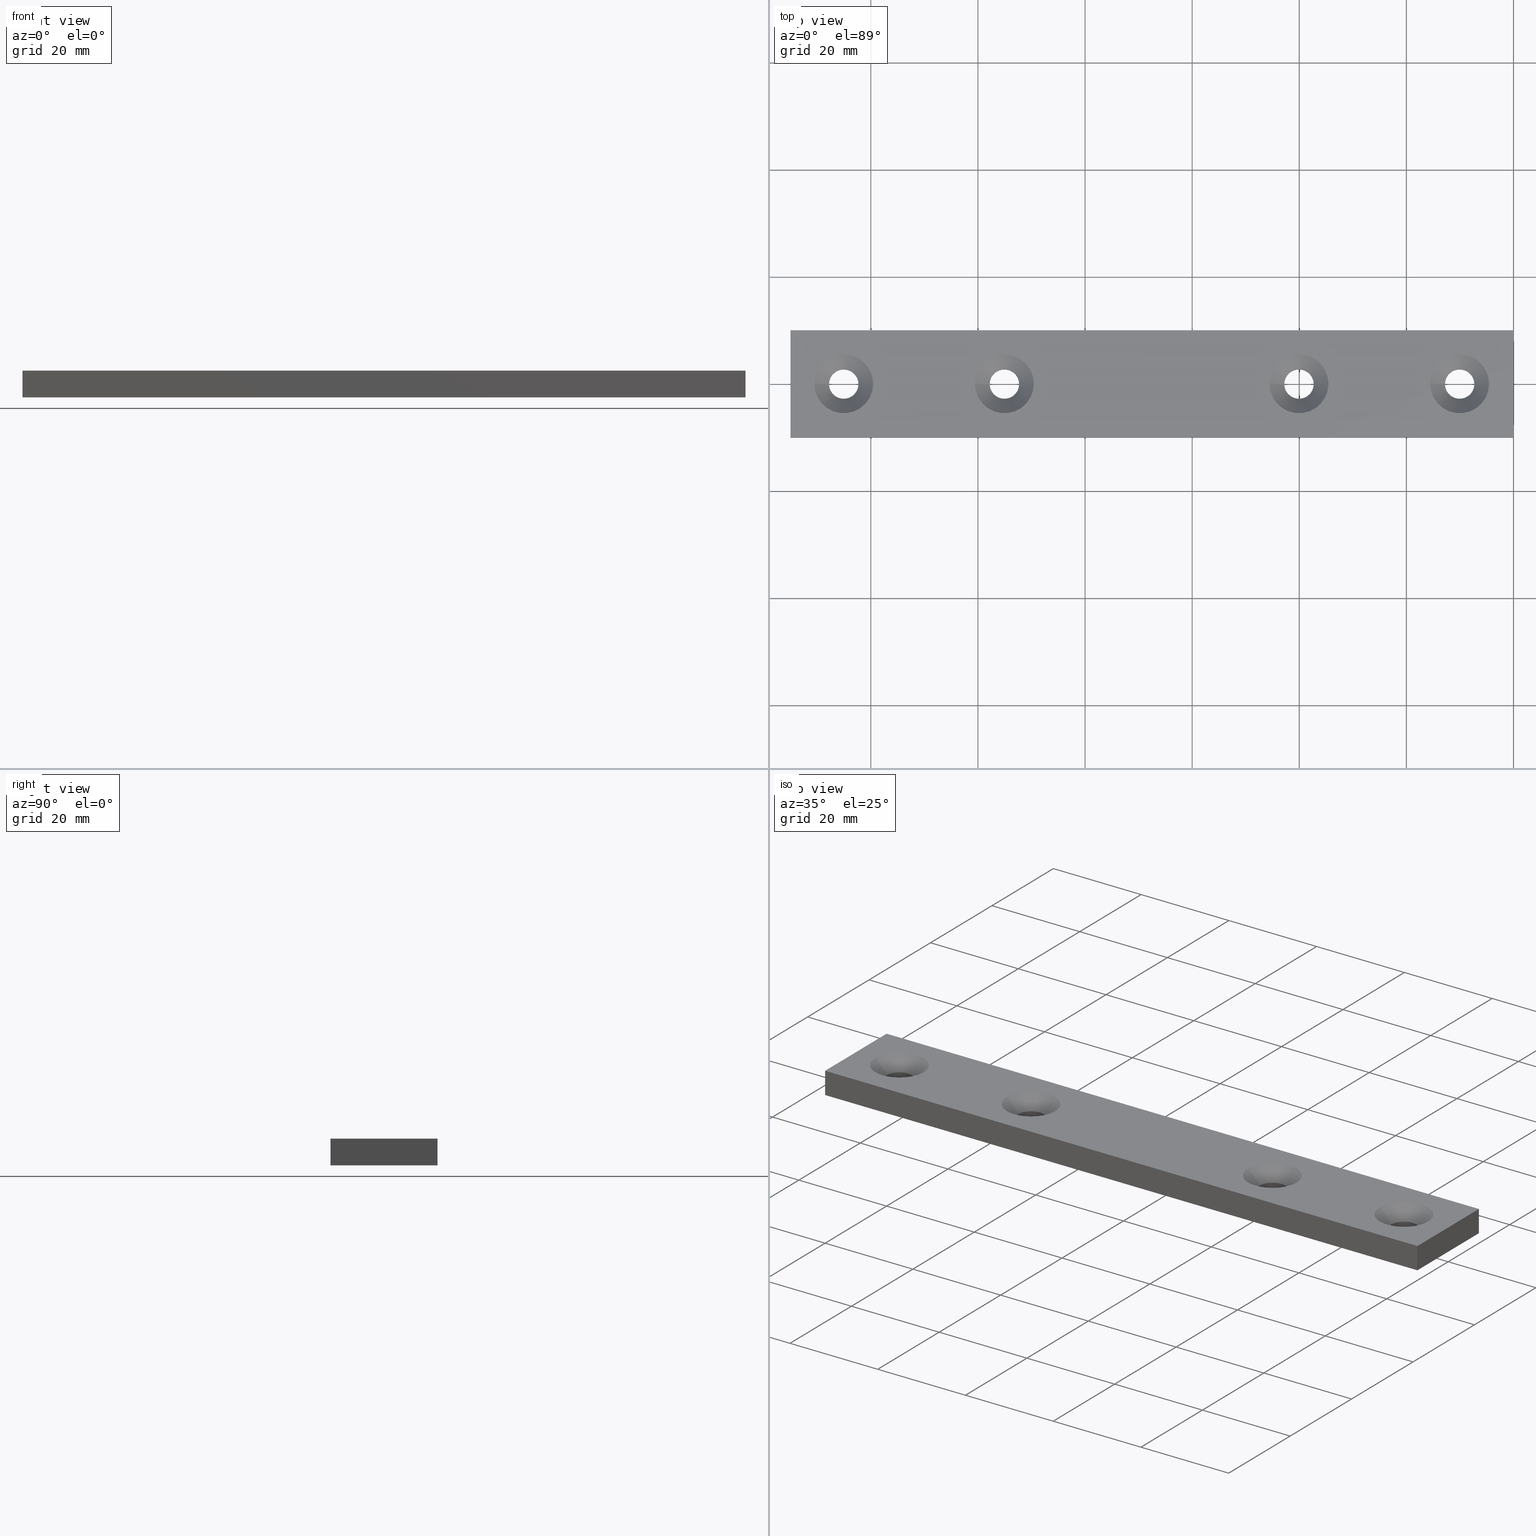
[diagram: canonical four-view strip — front | top / right | iso, engineering-drawing reading convention]
A machine part, canonical four-view strip (front | top / right | iso — engineering-drawing reading convention). The complete STEP part file that produces these views, byte-faithful:
ISO-10303-21;
HEADER;
/* Generated by software containing ST-Developer
 * from STEP Tools, Inc. (www.steptools.com) 
 */

FILE_DESCRIPTION(
/* description */ ('PIATTO DI SERRAGGIO 20x5X135 ZN'),
/* implementation_level */ '2;1');

FILE_NAME(
/* name */ 
'Q:\\Catalogo\\2_Accessori Dierre\\Per Download Web e catalogo cartace
o\\CATALOGO ELEMENTI ASSEMBLAGGIO\\PAGINA 21\\DPSXX0000967.stp',
/* time_stamp */ '2018-11-02T09:57:41+01:00',
/* author */ ('fzagni'),
/* organization */ (''),
/* preprocessor_version */ 'ST-DEVELOPER v16.1',
/* originating_system */ 'Autodesk Inventor 2016',
/* authorisation */ '');

FILE_SCHEMA (('AUTOMOTIVE_DESIGN { 1 0 10303 214 3 1 1 }'));
ENDSEC;

DATA;
#10=MECHANICAL_DESIGN_GEOMETRIC_PRESENTATION_REPRESENTATION('',(#13),#387);
#11=SHAPE_REPRESENTATION_RELATIONSHIP('SRR','None',#396,#12);
#12=ADVANCED_BREP_SHAPE_REPRESENTATION('',(#14),#386);
#13=STYLED_ITEM('',(#405),#14);
#14=MANIFOLD_SOLID_BREP('None',#231);
#15=CONICAL_SURFACE('',#249,3.02500000000002,45.0000000000001);
#16=CONICAL_SURFACE('',#252,3.02500000000002,45.0000000000001);
#17=CONICAL_SURFACE('',#255,3.025,44.9999999999999);
#18=CONICAL_SURFACE('',#258,3.025,45.0000000000001);
#19=CYLINDRICAL_SURFACE('',#247,2.75);
#20=CYLINDRICAL_SURFACE('',#250,2.75);
#21=CYLINDRICAL_SURFACE('',#253,2.75);
#22=CYLINDRICAL_SURFACE('',#256,2.75);
#23=FACE_BOUND('',#70,.T.);
#24=FACE_BOUND('',#71,.T.);
#25=FACE_BOUND('',#72,.T.);
#26=FACE_BOUND('',#73,.T.);
#27=FACE_BOUND('',#75,.T.);
#28=FACE_BOUND('',#76,.T.);
#29=FACE_BOUND('',#77,.T.);
#30=FACE_BOUND('',#78,.T.);
#31=FACE_BOUND('',#80,.T.);
#32=FACE_BOUND('',#82,.T.);
#33=FACE_BOUND('',#84,.T.);
#34=FACE_BOUND('',#86,.T.);
#35=FACE_BOUND('',#88,.T.);
#36=FACE_BOUND('',#90,.T.);
#37=FACE_BOUND('',#92,.T.);
#38=FACE_BOUND('',#94,.T.);
#39=CIRCLE('',#238,2.75);
#40=CIRCLE('',#239,2.75);
#41=CIRCLE('',#240,2.75);
#42=CIRCLE('',#241,2.75);
#43=CIRCLE('',#243,5.5);
#44=CIRCLE('',#244,5.5);
#45=CIRCLE('',#245,5.5);
#46=CIRCLE('',#246,5.5);
#47=CIRCLE('',#248,2.75);
#48=CIRCLE('',#251,2.75);
#49=CIRCLE('',#254,2.75);
#50=CIRCLE('',#257,2.75);
#51=FACE_OUTER_BOUND('',#65,.T.);
#52=FACE_OUTER_BOUND('',#66,.T.);
#53=FACE_OUTER_BOUND('',#67,.T.);
#54=FACE_OUTER_BOUND('',#68,.T.);
#55=FACE_OUTER_BOUND('',#69,.T.);
#56=FACE_OUTER_BOUND('',#74,.T.);
#57=FACE_OUTER_BOUND('',#79,.T.);
#58=FACE_OUTER_BOUND('',#81,.T.);
#59=FACE_OUTER_BOUND('',#83,.T.);
#60=FACE_OUTER_BOUND('',#85,.T.);
#61=FACE_OUTER_BOUND('',#87,.T.);
#62=FACE_OUTER_BOUND('',#89,.T.);
#63=FACE_OUTER_BOUND('',#91,.T.);
#64=FACE_OUTER_BOUND('',#93,.T.);
#65=EDGE_LOOP('',(#163,#164,#165,#166));
#66=EDGE_LOOP('',(#167,#168,#169,#170));
#67=EDGE_LOOP('',(#171,#172,#173,#174));
#68=EDGE_LOOP('',(#175,#176,#177,#178));
#69=EDGE_LOOP('',(#179,#180,#181,#182));
#70=EDGE_LOOP('',(#183));
#71=EDGE_LOOP('',(#184));
#72=EDGE_LOOP('',(#185));
#73=EDGE_LOOP('',(#186));
#74=EDGE_LOOP('',(#187,#188,#189,#190));
#75=EDGE_LOOP('',(#191));
#76=EDGE_LOOP('',(#192));
#77=EDGE_LOOP('',(#193));
#78=EDGE_LOOP('',(#194));
#79=EDGE_LOOP('',(#195));
#80=EDGE_LOOP('',(#196));
#81=EDGE_LOOP('',(#197));
#82=EDGE_LOOP('',(#198));
#83=EDGE_LOOP('',(#199));
#84=EDGE_LOOP('',(#200));
#85=EDGE_LOOP('',(#201));
#86=EDGE_LOOP('',(#202));
#87=EDGE_LOOP('',(#203));
#88=EDGE_LOOP('',(#204));
#89=EDGE_LOOP('',(#205));
#90=EDGE_LOOP('',(#206));
#91=EDGE_LOOP('',(#207));
#92=EDGE_LOOP('',(#208));
#93=EDGE_LOOP('',(#209));
#94=EDGE_LOOP('',(#210));
#95=LINE('',#329,#107);
#96=LINE('',#331,#108);
#97=LINE('',#333,#109);
#98=LINE('',#334,#110);
#99=LINE('',#337,#111);
#100=LINE('',#339,#112);
#101=LINE('',#340,#113);
#102=LINE('',#343,#114);
#103=LINE('',#345,#115);
#104=LINE('',#346,#116);
#105=LINE('',#348,#117);
#106=LINE('',#349,#118);
#107=VECTOR('',#263,135.);
#108=VECTOR('',#264,5.);
#109=VECTOR('',#265,135.);
#110=VECTOR('',#266,5.);
#111=VECTOR('',#269,19.9999999999991);
#112=VECTOR('',#270,5.);
#113=VECTOR('',#271,19.9999999999991);
#114=VECTOR('',#274,135.);
#115=VECTOR('',#275,5.);
#116=VECTOR('',#276,135.);
#117=VECTOR('',#279,19.9999999999991);
#118=VECTOR('',#280,19.9999999999991);
#119=VERTEX_POINT('',#327);
#120=VERTEX_POINT('',#328);
#121=VERTEX_POINT('',#330);
#122=VERTEX_POINT('',#332);
#123=VERTEX_POINT('',#336);
#124=VERTEX_POINT('',#338);
#125=VERTEX_POINT('',#342);
#126=VERTEX_POINT('',#344);
#127=VERTEX_POINT('',#351);
#128=VERTEX_POINT('',#353);
#129=VERTEX_POINT('',#355);
#130=VERTEX_POINT('',#357);
#131=VERTEX_POINT('',#360);
#132=VERTEX_POINT('',#362);
#133=VERTEX_POINT('',#364);
#134=VERTEX_POINT('',#366);
#135=VERTEX_POINT('',#369);
#136=VERTEX_POINT('',#373);
#137=VERTEX_POINT('',#377);
#138=VERTEX_POINT('',#381);
#139=EDGE_CURVE('',#119,#120,#95,.T.);
#140=EDGE_CURVE('',#120,#121,#96,.T.);
#141=EDGE_CURVE('',#122,#121,#97,.T.);
#142=EDGE_CURVE('',#119,#122,#98,.T.);
#143=EDGE_CURVE('',#120,#123,#99,.T.);
#144=EDGE_CURVE('',#123,#124,#100,.T.);
#145=EDGE_CURVE('',#121,#124,#101,.T.);
#146=EDGE_CURVE('',#123,#125,#102,.T.);
#147=EDGE_CURVE('',#125,#126,#103,.T.);
#148=EDGE_CURVE('',#124,#126,#104,.T.);
#149=EDGE_CURVE('',#125,#119,#105,.T.);
#150=EDGE_CURVE('',#126,#122,#106,.T.);
#151=EDGE_CURVE('',#127,#127,#39,.T.);
#152=EDGE_CURVE('',#128,#128,#40,.T.);
#153=EDGE_CURVE('',#129,#129,#41,.T.);
#154=EDGE_CURVE('',#130,#130,#42,.T.);
#155=EDGE_CURVE('',#131,#131,#43,.T.);
#156=EDGE_CURVE('',#132,#132,#44,.T.);
#157=EDGE_CURVE('',#133,#133,#45,.T.);
#158=EDGE_CURVE('',#134,#134,#46,.T.);
#159=EDGE_CURVE('',#135,#135,#47,.T.);
#160=EDGE_CURVE('',#136,#136,#48,.T.);
#161=EDGE_CURVE('',#137,#137,#49,.T.);
#162=EDGE_CURVE('',#138,#138,#50,.T.);
#163=ORIENTED_EDGE('',*,*,#139,.T.);
#164=ORIENTED_EDGE('',*,*,#140,.T.);
#165=ORIENTED_EDGE('',*,*,#141,.F.);
#166=ORIENTED_EDGE('',*,*,#142,.F.);
#167=ORIENTED_EDGE('',*,*,#143,.T.);
#168=ORIENTED_EDGE('',*,*,#144,.T.);
#169=ORIENTED_EDGE('',*,*,#145,.F.);
#170=ORIENTED_EDGE('',*,*,#140,.F.);
#171=ORIENTED_EDGE('',*,*,#146,.T.);
#172=ORIENTED_EDGE('',*,*,#147,.T.);
#173=ORIENTED_EDGE('',*,*,#148,.F.);
#174=ORIENTED_EDGE('',*,*,#144,.F.);
#175=ORIENTED_EDGE('',*,*,#149,.T.);
#176=ORIENTED_EDGE('',*,*,#142,.T.);
#177=ORIENTED_EDGE('',*,*,#150,.F.);
#178=ORIENTED_EDGE('',*,*,#147,.F.);
#179=ORIENTED_EDGE('',*,*,#149,.F.);
#180=ORIENTED_EDGE('',*,*,#146,.F.);
#181=ORIENTED_EDGE('',*,*,#143,.F.);
#182=ORIENTED_EDGE('',*,*,#139,.F.);
#183=ORIENTED_EDGE('',*,*,#151,.T.);
#184=ORIENTED_EDGE('',*,*,#152,.T.);
#185=ORIENTED_EDGE('',*,*,#153,.T.);
#186=ORIENTED_EDGE('',*,*,#154,.T.);
#187=ORIENTED_EDGE('',*,*,#141,.T.);
#188=ORIENTED_EDGE('',*,*,#145,.T.);
#189=ORIENTED_EDGE('',*,*,#148,.T.);
#190=ORIENTED_EDGE('',*,*,#150,.T.);
#191=ORIENTED_EDGE('',*,*,#155,.F.);
#192=ORIENTED_EDGE('',*,*,#156,.F.);
#193=ORIENTED_EDGE('',*,*,#157,.F.);
#194=ORIENTED_EDGE('',*,*,#158,.F.);
#195=ORIENTED_EDGE('',*,*,#151,.F.);
#196=ORIENTED_EDGE('',*,*,#159,.T.);
#197=ORIENTED_EDGE('',*,*,#155,.T.);
#198=ORIENTED_EDGE('',*,*,#159,.F.);
#199=ORIENTED_EDGE('',*,*,#152,.F.);
#200=ORIENTED_EDGE('',*,*,#160,.T.);
#201=ORIENTED_EDGE('',*,*,#156,.T.);
#202=ORIENTED_EDGE('',*,*,#160,.F.);
#203=ORIENTED_EDGE('',*,*,#153,.F.);
#204=ORIENTED_EDGE('',*,*,#161,.T.);
#205=ORIENTED_EDGE('',*,*,#157,.T.);
#206=ORIENTED_EDGE('',*,*,#161,.F.);
#207=ORIENTED_EDGE('',*,*,#154,.F.);
#208=ORIENTED_EDGE('',*,*,#162,.T.);
#209=ORIENTED_EDGE('',*,*,#158,.T.);
#210=ORIENTED_EDGE('',*,*,#162,.F.);
#211=PLANE('',#233);
#212=PLANE('',#234);
#213=PLANE('',#235);
#214=PLANE('',#236);
#215=PLANE('',#237);
#216=PLANE('',#242);
#217=ADVANCED_FACE('',(#51),#211,.T.);
#218=ADVANCED_FACE('',(#52),#212,.T.);
#219=ADVANCED_FACE('',(#53),#213,.T.);
#220=ADVANCED_FACE('',(#54),#214,.T.);
#221=ADVANCED_FACE('',(#55,#23,#24,#25,#26),#215,.F.);
#222=ADVANCED_FACE('',(#56,#27,#28,#29,#30),#216,.T.);
#223=ADVANCED_FACE('',(#57,#31),#19,.F.);
#224=ADVANCED_FACE('',(#58,#32),#15,.F.);
#225=ADVANCED_FACE('',(#59,#33),#20,.F.);
#226=ADVANCED_FACE('',(#60,#34),#16,.F.);
#227=ADVANCED_FACE('',(#61,#35),#21,.F.);
#228=ADVANCED_FACE('',(#62,#36),#17,.F.);
#229=ADVANCED_FACE('',(#63,#37),#22,.F.);
#230=ADVANCED_FACE('',(#64,#38),#18,.F.);
#231=CLOSED_SHELL('',(#217,#218,#219,#220,#221,#222,#223,#224,#225,#226,
#227,#228,#229,#230));
#232=AXIS2_PLACEMENT_3D('placement',#325,#259,#260);
#233=AXIS2_PLACEMENT_3D('',#326,#261,#262);
#234=AXIS2_PLACEMENT_3D('',#335,#267,#268);
#235=AXIS2_PLACEMENT_3D('',#341,#272,#273);
#236=AXIS2_PLACEMENT_3D('',#347,#277,#278);
#237=AXIS2_PLACEMENT_3D('',#350,#281,#282);
#238=AXIS2_PLACEMENT_3D('',#352,#283,#284);
#239=AXIS2_PLACEMENT_3D('',#354,#285,#286);
#240=AXIS2_PLACEMENT_3D('',#356,#287,#288);
#241=AXIS2_PLACEMENT_3D('',#358,#289,#290);
#242=AXIS2_PLACEMENT_3D('',#359,#291,#292);
#243=AXIS2_PLACEMENT_3D('',#361,#293,#294);
#244=AXIS2_PLACEMENT_3D('',#363,#295,#296);
#245=AXIS2_PLACEMENT_3D('',#365,#297,#298);
#246=AXIS2_PLACEMENT_3D('',#367,#299,#300);
#247=AXIS2_PLACEMENT_3D('',#368,#301,#302);
#248=AXIS2_PLACEMENT_3D('',#370,#303,#304);
#249=AXIS2_PLACEMENT_3D('',#371,#305,#306);
#250=AXIS2_PLACEMENT_3D('',#372,#307,#308);
#251=AXIS2_PLACEMENT_3D('',#374,#309,#310);
#252=AXIS2_PLACEMENT_3D('',#375,#311,#312);
#253=AXIS2_PLACEMENT_3D('',#376,#313,#314);
#254=AXIS2_PLACEMENT_3D('',#378,#315,#316);
#255=AXIS2_PLACEMENT_3D('',#379,#317,#318);
#256=AXIS2_PLACEMENT_3D('',#380,#319,#320);
#257=AXIS2_PLACEMENT_3D('',#382,#321,#322);
#258=AXIS2_PLACEMENT_3D('',#383,#323,#324);
#259=DIRECTION('axis',(0.,0.,1.));
#260=DIRECTION('refdir',(1.,0.,0.));
#261=DIRECTION('center_axis',(0.,1.,-2.5809571E-8));
#262=DIRECTION('ref_axis',(0.,2.5809571013724E-8,1.));
#263=DIRECTION('',(-1.,0.,0.));
#264=DIRECTION('',(0.,2.58095698146832E-8,1.));
#265=DIRECTION('',(-1.,0.,0.));
#266=DIRECTION('',(0.,2.58095709249062E-8,1.));
#267=DIRECTION('center_axis',(-1.,0.,0.));
#268=DIRECTION('ref_axis',(0.,0.,1.));
#269=DIRECTION('',(0.,-1.,2.580957E-8));
#270=DIRECTION('',(0.,2.58095700367278E-8,1.));
#271=DIRECTION('',(0.,-1.,2.58095700089734E-8));
#272=DIRECTION('center_axis',(1.224647E-16,-1.,2.580957E-8));
#273=DIRECTION('ref_axis',(0.,-2.58095699479099E-8,-1.));
#274=DIRECTION('',(1.,0.,0.));
#275=DIRECTION('',(0.,2.58095709249062E-8,1.));
#276=DIRECTION('',(1.,0.,0.));
#277=DIRECTION('center_axis',(1.,0.,0.));
#278=DIRECTION('ref_axis',(0.,0.,-1.));
#279=DIRECTION('',(-6.125368E-17,1.,-2.580957E-8));
#280=DIRECTION('',(-6.125368E-17,1.,-2.58095699812178E-8));
#281=DIRECTION('center_axis',(0.,2.580957E-8,1.));
#282=DIRECTION('ref_axis',(1.,0.,0.));
#283=DIRECTION('center_axis',(0.,2.580957E-8,1.));
#284=DIRECTION('ref_axis',(1.,0.,0.));
#285=DIRECTION('center_axis',(0.,2.580957E-8,1.));
#286=DIRECTION('ref_axis',(1.,0.,0.));
#287=DIRECTION('center_axis',(0.,2.580957E-8,1.));
#288=DIRECTION('ref_axis',(1.,0.,0.));
#289=DIRECTION('center_axis',(0.,2.580957E-8,1.));
#290=DIRECTION('ref_axis',(1.,0.,0.));
#291=DIRECTION('center_axis',(0.,2.580957E-8,1.));
#292=DIRECTION('ref_axis',(1.,0.,0.));
#293=DIRECTION('center_axis',(-1.61487E-16,2.580957E-8,1.));
#294=DIRECTION('ref_axis',(1.,0.,0.));
#295=DIRECTION('center_axis',(-1.61487E-16,2.580957E-8,1.));
#296=DIRECTION('ref_axis',(1.,0.,0.));
#297=DIRECTION('center_axis',(-1.61487E-16,2.580957E-8,1.));
#298=DIRECTION('ref_axis',(1.,0.,0.));
#299=DIRECTION('center_axis',(-1.61487E-16,2.580957E-8,1.));
#300=DIRECTION('ref_axis',(1.,0.,0.));
#301=DIRECTION('center_axis',(0.,2.580957E-8,1.));
#302=DIRECTION('ref_axis',(1.,0.,0.));
#303=DIRECTION('center_axis',(0.,2.580957E-8,1.));
#304=DIRECTION('ref_axis',(1.,0.,0.));
#305=DIRECTION('center_axis',(-1.74000731900355E-17,2.58095682632845E-8,
1.));
#306=DIRECTION('ref_axis',(0.813826036051076,0.581108581114917,-1.49981615785052E-8));
#307=DIRECTION('center_axis',(0.,2.580957E-8,1.));
#308=DIRECTION('ref_axis',(1.,0.,0.));
#309=DIRECTION('center_axis',(0.,2.580957E-8,1.));
#310=DIRECTION('ref_axis',(1.,0.,0.));
#311=DIRECTION('center_axis',(-1.74000866594244E-17,2.58095682632844E-8,
1.));
#312=DIRECTION('ref_axis',(0.813826036051076,0.581108581114918,-1.49981615785052E-8));
#313=DIRECTION('center_axis',(0.,2.580957E-8,1.));
#314=DIRECTION('ref_axis',(1.,0.,0.));
#315=DIRECTION('center_axis',(0.,2.580957E-8,1.));
#316=DIRECTION('ref_axis',(1.,0.,0.));
#317=DIRECTION('center_axis',(-5.78397098142685E-16,2.58095729313887E-8,
1.));
#318=DIRECTION('ref_axis',(0.813826036051074,0.58110858111492,-1.49981638346267E-8));
#319=DIRECTION('center_axis',(0.,2.580957E-8,1.));
#320=DIRECTION('ref_axis',(1.,0.,0.));
#321=DIRECTION('center_axis',(0.,2.580957E-8,1.));
#322=DIRECTION('ref_axis',(1.,0.,0.));
#323=DIRECTION('center_axis',(-4.54354522613332E-17,2.58095686433476E-8,
1.));
#324=DIRECTION('ref_axis',(0.813826036051075,0.581108581114919,-1.49981617765473E-8));
#325=CARTESIAN_POINT('',(0.,0.,0.));
#326=CARTESIAN_POINT('Origin',(-5.512832E-16,9.99999999999954,-2.58095696E-7));
#327=CARTESIAN_POINT('',(-5.512832E-16,9.99999999999954,-2.58095696E-7));
#328=CARTESIAN_POINT('',(-135.,9.99999999999954,-2.58095696E-7));
#329=CARTESIAN_POINT('',(-5.512832E-16,9.99999999999954,-2.58095696E-7));
#330=CARTESIAN_POINT('',(-135.,10.0000001290474,4.9999997419043));
#331=CARTESIAN_POINT('',(-135.,9.99999999999954,-2.58095696E-7));
#332=CARTESIAN_POINT('',(-5.512832E-16,10.0000001290474,4.9999997419043));
#333=CARTESIAN_POINT('',(-5.512832E-16,10.0000001290474,4.9999997419043));
#334=CARTESIAN_POINT('',(-5.512832E-16,9.99999999999954,-2.58095696E-7));
#335=CARTESIAN_POINT('Origin',(-135.,9.99999999999954,-2.58095696E-7));
#336=CARTESIAN_POINT('',(-135.,-9.99999999999956,2.58095697E-7));
#337=CARTESIAN_POINT('',(-135.,9.99999999999954,-2.58095696E-7));
#338=CARTESIAN_POINT('',(-135.,-9.99999987095171,5.0000002580957));
#339=CARTESIAN_POINT('',(-135.,-9.99999999999956,2.58095697E-7));
#340=CARTESIAN_POINT('',(-135.,10.0000001290474,4.9999997419043));
#341=CARTESIAN_POINT('Origin',(-135.,-9.99999999999956,2.58095697E-7));
#342=CARTESIAN_POINT('',(5.589399E-16,-9.99999999999954,2.58095697E-7));
#343=CARTESIAN_POINT('',(-135.,-9.99999999999956,2.58095697E-7));
#344=CARTESIAN_POINT('',(5.589399E-16,-9.99999987095169,5.0000002580957));
#345=CARTESIAN_POINT('',(5.589399E-16,-9.99999999999954,2.58095697E-7));
#346=CARTESIAN_POINT('',(-135.,-9.99999987095171,5.0000002580957));
#347=CARTESIAN_POINT('Origin',(5.589399E-16,-9.99999999999954,2.58095697E-7));
#348=CARTESIAN_POINT('',(6.125368E-16,-9.99999999999954,2.58095697E-7));
#349=CARTESIAN_POINT('',(6.125368E-16,-9.99999987095169,5.0000002580957));
#350=CARTESIAN_POINT('Origin',(-148.500120000331,-12.0001200003562,3.09717933E-7));
#351=CARTESIAN_POINT('',(-127.80552872784,4.494183E-13,-5.511026E-16));
#352=CARTESIAN_POINT('Origin',(-125.05552872784,4.494183E-13,-5.511026E-16));
#353=CARTESIAN_POINT('',(-97.8055287278403,4.52971E-13,-5.511026E-16));
#354=CARTESIAN_POINT('Origin',(-95.0555287278403,4.52971E-13,-5.511026E-16));
#355=CARTESIAN_POINT('',(-42.8055287278403,4.600764E-13,-5.511026E-16));
#356=CARTESIAN_POINT('Origin',(-40.0555287278403,4.600764E-13,-5.511026E-16));
#357=CARTESIAN_POINT('',(-12.8055287278403,4.636291E-13,-5.511026E-16));
#358=CARTESIAN_POINT('Origin',(-10.0555287278403,4.636291E-13,-5.511026E-16));
#359=CARTESIAN_POINT('Origin',(-148.500120000331,-12.0001198713083,5.00000030971793));
#360=CARTESIAN_POINT('',(-130.55552872784,1.29048297E-7,4.99999999999927));
#361=CARTESIAN_POINT('Origin',(-125.05552872784,1.29048297E-7,4.99999999999927));
#362=CARTESIAN_POINT('',(-100.55552872784,1.29048301E-7,4.99999999999927));
#363=CARTESIAN_POINT('Origin',(-95.0555287278403,1.29048301E-7,4.99999999999927));
#364=CARTESIAN_POINT('',(-45.5555287278403,1.29048308E-7,4.99999999999927));
#365=CARTESIAN_POINT('Origin',(-40.0555287278403,1.29048308E-7,4.99999999999927));
#366=CARTESIAN_POINT('',(-15.5555287278403,1.29048312E-7,4.99999999999927));
#367=CARTESIAN_POINT('Origin',(-10.0555287278403,1.29048312E-7,4.99999999999927));
#368=CARTESIAN_POINT('Origin',(-125.05552872784,-4.5166297E-8,-1.75000000000072));
#369=CARTESIAN_POINT('',(-127.80552872784,5.8071981E-8,2.24999999999928));
#370=CARTESIAN_POINT('Origin',(-125.05552872784,5.8071981E-8,2.24999999999928));
#371=CARTESIAN_POINT('Origin',(-125.05552872784,6.51696094311482E-8,2.52499999999928));
#372=CARTESIAN_POINT('Origin',(-95.0555287278403,-4.5166294E-8,-1.75000000000072));
#373=CARTESIAN_POINT('',(-97.8055287278403,5.8071985E-8,2.24999999999928));
#374=CARTESIAN_POINT('Origin',(-95.0555287278403,5.8071985E-8,2.24999999999928));
#375=CARTESIAN_POINT('Origin',(-95.0555287278403,6.51696077658137E-8,2.52499999999928));
#376=CARTESIAN_POINT('Origin',(-40.0555287278403,-4.5166287E-8,-1.75000000000072));
#377=CARTESIAN_POINT('',(-42.8055287278403,5.8071992E-8,2.24999999999928));
#378=CARTESIAN_POINT('Origin',(-40.0555287278403,5.8071992E-8,2.24999999999928));
#379=CARTESIAN_POINT('Origin',(-40.0555287278403,6.51696219211573E-8,2.52499999999928));
#380=CARTESIAN_POINT('Origin',(-10.0555287278403,-4.5166283E-8,-1.75000000000072));
#381=CARTESIAN_POINT('',(-12.8055287278403,5.8071995E-8,2.24999999999928));
#382=CARTESIAN_POINT('Origin',(-10.0555287278403,5.8071995E-8,2.24999999999928));
#383=CARTESIAN_POINT('Origin',(-10.0555287278403,6.51696271947166E-8,2.52499999999928));
#384=UNCERTAINTY_MEASURE_WITH_UNIT(LENGTH_MEASURE(0.01),#388,
'DISTANCE_ACCURACY_VALUE',
'Maximum model space distance between geometric entities at asserted c
onnectivities');
#385=UNCERTAINTY_MEASURE_WITH_UNIT(LENGTH_MEASURE(1.E-6),#388,
'DISTANCE_ACCURACY_VALUE',
'Maximum model space distance between geometric entities at asserted c
onnectivities');
#386=(
GEOMETRIC_REPRESENTATION_CONTEXT(3)
GLOBAL_UNCERTAINTY_ASSIGNED_CONTEXT((#384))
GLOBAL_UNIT_ASSIGNED_CONTEXT((#388,#391,#389))
REPRESENTATION_CONTEXT('','3D')
);
#387=(
GEOMETRIC_REPRESENTATION_CONTEXT(3)
GLOBAL_UNCERTAINTY_ASSIGNED_CONTEXT((#385))
GLOBAL_UNIT_ASSIGNED_CONTEXT((#388,#391,#389))
REPRESENTATION_CONTEXT('','3D')
);
#388=(
LENGTH_UNIT()
NAMED_UNIT(*)
SI_UNIT(.MILLI.,.METRE.)
);
#389=(
NAMED_UNIT(*)
SI_UNIT($,.STERADIAN.)
SOLID_ANGLE_UNIT()
);
#390=DIMENSIONAL_EXPONENTS(0.,0.,0.,0.,0.,0.,0.);
#391=(
CONVERSION_BASED_UNIT('degree',#393)
NAMED_UNIT(#390)
PLANE_ANGLE_UNIT()
);
#392=(
NAMED_UNIT(*)
PLANE_ANGLE_UNIT()
SI_UNIT($,.RADIAN.)
);
#393=PLANE_ANGLE_MEASURE_WITH_UNIT(PLANE_ANGLE_MEASURE(0.01745329252),#392);
#394=SHAPE_DEFINITION_REPRESENTATION(#395,#396);
#395=PRODUCT_DEFINITION_SHAPE('',$,#398);
#396=SHAPE_REPRESENTATION('',(#232),#386);
#397=PRODUCT_DEFINITION_CONTEXT('part definition',#402,'design');
#398=PRODUCT_DEFINITION('PROAC004-1','PROAC004-1',#399,#397);
#399=PRODUCT_DEFINITION_FORMATION('','A',#404);
#400=PRODUCT_RELATED_PRODUCT_CATEGORY('PROAC004-1','PROAC004-1',(#404));
#401=APPLICATION_PROTOCOL_DEFINITION('international standard',
'automotive_design',2009,#402);
#402=APPLICATION_CONTEXT(
'Core Data for Automotive Mechanical Design Process');
#403=PRODUCT_CONTEXT('part definition',#402,'mechanical');
#404=PRODUCT('PROAC004-1','PROAC004-1',$,(#403));
#405=PRESENTATION_STYLE_ASSIGNMENT((#406));
#406=SURFACE_STYLE_USAGE(.BOTH.,#407);
#407=SURFACE_SIDE_STYLE('',(#408));
#408=SURFACE_STYLE_FILL_AREA(#409);
#409=FILL_AREA_STYLE('',(#410));
#410=FILL_AREA_STYLE_COLOUR('',#411);
#411=COLOUR_RGB('',0.63921568627451,0.63921568627451,0.686274509803922);
ENDSEC;
END-ISO-10303-21;
